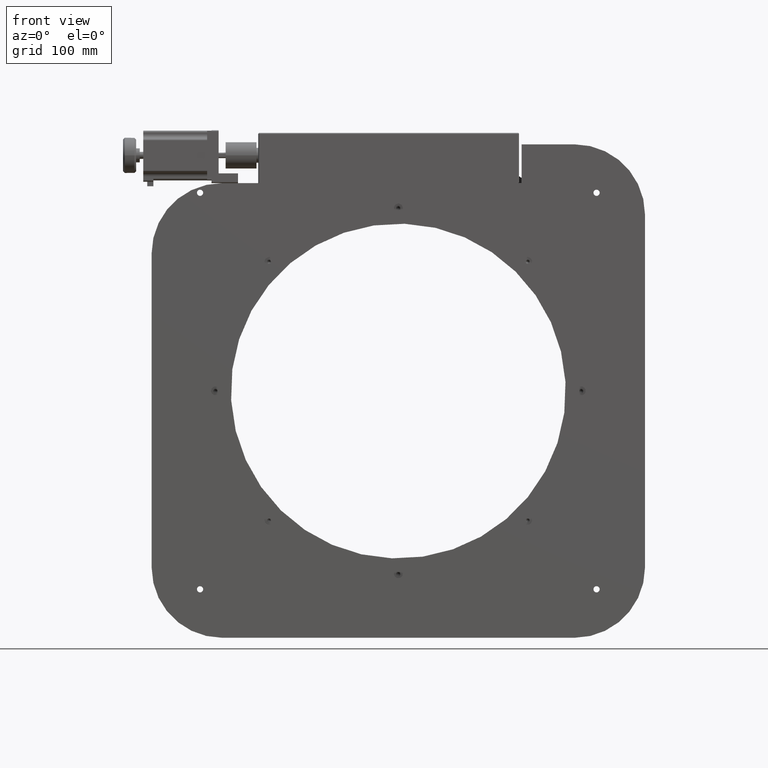
[diagram: clean part render]
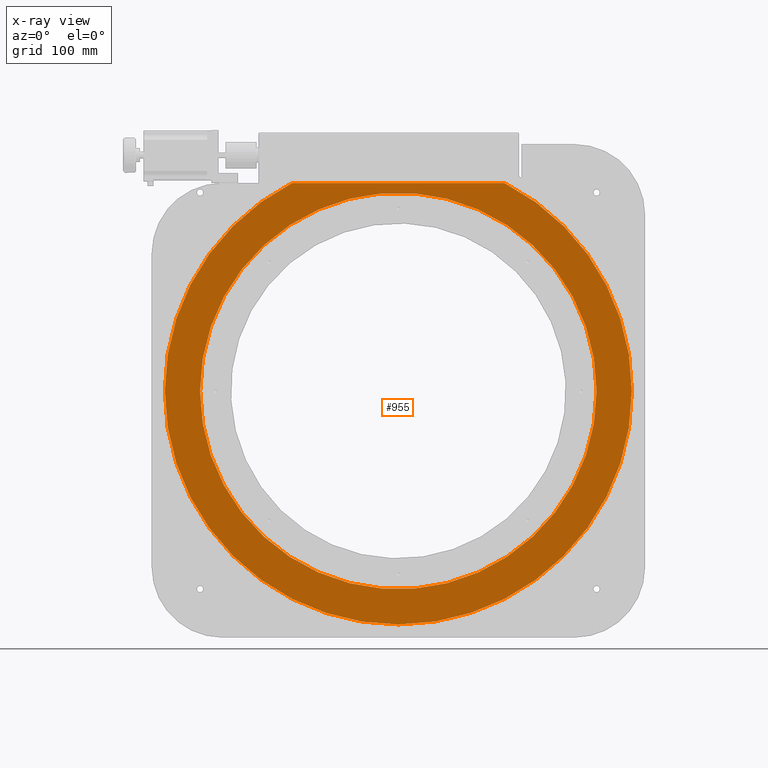
[diagram: x-ray — body ghosted, one internal face saturated and labeled with its STEP entity id]
A machine part, front view, then the same camera in x-ray: the body is ghosted and one INTERNAL B-rep face — a face not visible from any outside direction — is saturated and labeled: STEP entity #955.
In plain terms, the highlighted planar face has unit normal (0, 1, -0).
Its self-contained STEP definition (entity closure, byte-faithful):
#389 = DIRECTION ( 'NONE',  ( 0.0000000000000000000, 1.000000000000000000, -3.491481338843133400E-015 ) ) ;
#506 = DIRECTION ( 'NONE',  ( 1.000000000000000000, 0.0000000000000000000, 0.0000000000000000000 ) ) ;
#955 = ADVANCED_FACE ( 'NONE', ( #3541, #30445 ), #29453, .T. ) ;
#1036 = ORIENTED_EDGE ( 'NONE', *, *, #22892, .T. ) ;
#1363 = CARTESIAN_POINT ( 'NONE',  ( -66.99999999999987200, 10.99999999999901100, -291.9999999999999400 ) ) ;
#1459 = VERTEX_POINT ( 'NONE', #32056 ) ;
#2092 = CARTESIAN_POINT ( 'NONE',  ( 278.5363015858712900, 10.99999999999981500, -56.00000000000005000 ) ) ;
#3352 = CARTESIAN_POINT ( 'NONE',  ( 383.0000000000001100, 10.99999999999901100, -291.9999999999999400 ) ) ;
#3531 = VERTEX_POINT ( 'NONE', #2092 ) ;
#3541 = FACE_OUTER_BOUND ( 'NONE', #8604, .T. ) ;
#4050 = CARTESIAN_POINT ( 'NONE',  ( 158.0000000000001400, 10.99999999999901100, -291.9999999999999400 ) ) ;
#4191 = CARTESIAN_POINT ( 'NONE',  ( 158.0000000000001400, 10.99999999999901100, -291.9999999999999400 ) ) ;
#4315 = EDGE_CURVE ( 'NONE', #31292, #17004, #10813, .T. ) ;
#4433 = DIRECTION ( 'NONE',  ( -0.0000000000000000000, -1.000000000000000000, 3.491481338843133400E-015 ) ) ;
#4853 = VERTEX_POINT ( 'NONE', #6186 ) ;
#5121 = DIRECTION ( 'NONE',  ( 1.000000000000000000, 0.0000000000000000000, 0.0000000000000000000 ) ) ;
#5308 = CARTESIAN_POINT ( 'NONE',  ( 37.46369841412897700, 10.99999999999981500, -56.00000000000005000 ) ) ;
#5619 = EDGE_CURVE ( 'NONE', #1459, #26040, #25314, .T. ) ;
#6186 = CARTESIAN_POINT ( 'NONE',  ( 423.0000000000002300, 10.99999999999901100, -292.0000000000000600 ) ) ;
#7294 = EDGE_LOOP ( 'NONE', ( #12447, #32446 ) ) ;
#8033 = ORIENTED_EDGE ( 'NONE', *, *, #23015, .T. ) ;
#8604 = EDGE_LOOP ( 'NONE', ( #1036, #8033, #27672, #12187 ) ) ;
#8849 = DIRECTION ( 'NONE',  ( 1.000000000000000000, 0.0000000000000000000, 0.0000000000000000000 ) ) ;
#9398 = DIRECTION ( 'NONE',  ( 1.000000000000000000, 0.0000000000000000000, 0.0000000000000000000 ) ) ;
#10014 = CARTESIAN_POINT ( 'NONE',  ( -121.9999999999999400, 10.99999999999981500, -56.00000000000005000 ) ) ;
#10498 = AXIS2_PLACEMENT_3D ( 'NONE', #4191, #4433, #17321 ) ;
#10641 = CARTESIAN_POINT ( 'NONE',  ( 158.0000000000001400, 10.99999999999901100, -291.9999999999999400 ) ) ;
#10813 = CIRCLE ( 'NONE', #22903, 224.9999999999999700 ) ;
#11090 = AXIS2_PLACEMENT_3D ( 'NONE', #16619, #14100, #8849 ) ;
#12187 = ORIENTED_EDGE ( 'NONE', *, *, #5619, .T. ) ;
#12447 = ORIENTED_EDGE ( 'NONE', *, *, #4315, .T. ) ;
#13666 = CIRCLE ( 'NONE', #32173, 265.0000000000000600 ) ;
#14100 = DIRECTION ( 'NONE',  ( 0.0000000000000000000, 1.000000000000000000, -3.491481338843133400E-015 ) ) ;
#14239 = CIRCLE ( 'NONE', #17059, 265.0000000000000600 ) ;
#15512 = DIRECTION ( 'NONE',  ( 0.0000000000000000000, 1.000000000000000000, -3.491481338843133400E-015 ) ) ;
#16384 = DIRECTION ( 'NONE',  ( 0.0000000000000000000, 1.000000000000000000, -3.491481338843133400E-015 ) ) ;
#16619 = CARTESIAN_POINT ( 'NONE',  ( 158.0000000000001400, 10.99999999999901100, -291.9999999999999400 ) ) ;
#16737 = DIRECTION ( 'NONE',  ( -0.0000000000000000000, -1.000000000000000000, 3.491481338843133400E-015 ) ) ;
#17004 = VERTEX_POINT ( 'NONE', #1363 ) ;
#17059 = AXIS2_PLACEMENT_3D ( 'NONE', #10641, #389, #21973 ) ;
#17321 = DIRECTION ( 'NONE',  ( 1.000000000000000000, 0.0000000000000000000, 0.0000000000000000000 ) ) ;
#17582 = DIRECTION ( 'NONE',  ( 1.000000000000000000, 0.0000000000000000000, 0.0000000000000000000 ) ) ;
#21093 = CARTESIAN_POINT ( 'NONE',  ( 158.0000000000001400, 10.99999999999901100, -291.9999999999999400 ) ) ;
#21470 = VECTOR ( 'NONE', #17582, 1000.000000000000000 ) ;
#21505 = CARTESIAN_POINT ( 'NONE',  ( 158.0000000000001400, 10.99999999999901100, -291.9999999999999400 ) ) ;
#21944 = EDGE_CURVE ( 'NONE', #4853, #1459, #14239, .T. ) ;
#21973 = DIRECTION ( 'NONE',  ( 1.000000000000000000, 0.0000000000000000000, 0.0000000000000000000 ) ) ;
#22892 = EDGE_CURVE ( 'NONE', #26040, #3531, #28374, .T. ) ;
#22903 = AXIS2_PLACEMENT_3D ( 'NONE', #4050, #16737, #9398 ) ;
#23015 = EDGE_CURVE ( 'NONE', #3531, #4853, #13666, .T. ) ;
#24911 = AXIS2_PLACEMENT_3D ( 'NONE', #21505, #16384, #506 ) ;
#25314 = CIRCLE ( 'NONE', #24911, 265.0000000000000600 ) ;
#26040 = VERTEX_POINT ( 'NONE', #5308 ) ;
#27672 = ORIENTED_EDGE ( 'NONE', *, *, #21944, .T. ) ;
#28374 = LINE ( 'NONE', #10014, #21470 ) ;
#29453 = PLANE ( 'NONE',  #11090 ) ;
#30445 = FACE_BOUND ( 'NONE', #7294, .T. ) ;
#30532 = EDGE_CURVE ( 'NONE', #17004, #31292, #32873, .T. ) ;
#31292 = VERTEX_POINT ( 'NONE', #3352 ) ;
#32056 = CARTESIAN_POINT ( 'NONE',  ( -106.9999999999999300, 10.99999999999901100, -292.0000000000000600 ) ) ;
#32173 = AXIS2_PLACEMENT_3D ( 'NONE', #21093, #15512, #5121 ) ;
#32446 = ORIENTED_EDGE ( 'NONE', *, *, #30532, .T. ) ;
#32873 = CIRCLE ( 'NONE', #10498, 224.9999999999999700 ) ;